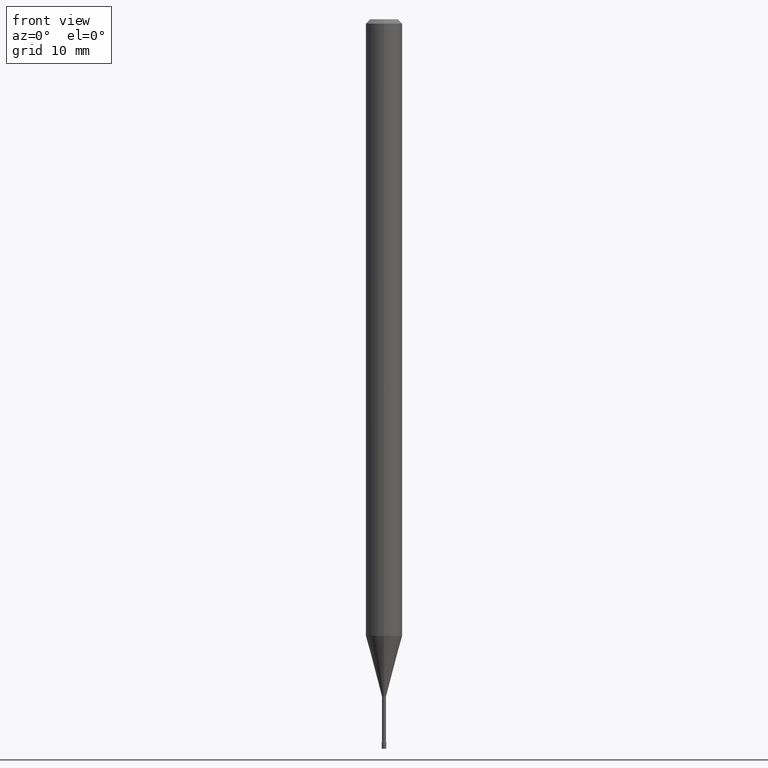
[diagram: clean part render]
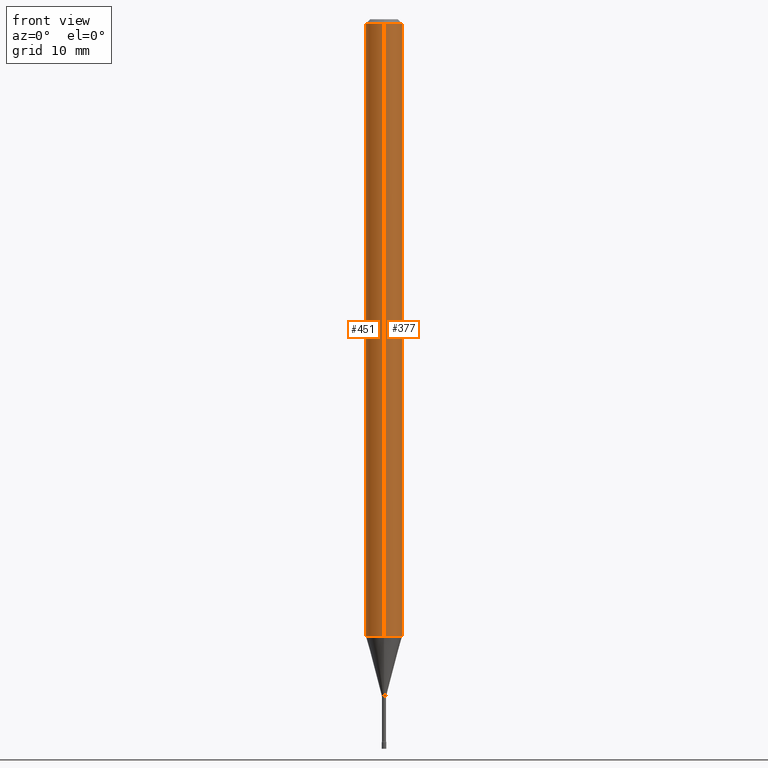
[diagram: same view with one multi-face feature highlighted, each face labeled with its STEP entity id]
A machine part, front view. The highlighted faces form ONE feature: a constant-radius fillet chain: 2 tangent blend faces with common blend radius 1.5875 mm. The faces share edges in the B-rep.
Their STEP definitions:
[1] entity #377 (Cylinder):
#8 = DIRECTION ( 'NONE',  ( -2.445435438683695197E-29, 3.491529123004369972E-15, 1.000000000000000000 ) ) ;
#12 = AXIS2_PLACEMENT_3D ( 'NONE', #134, #256, #304 ) ;
#20 = EDGE_CURVE ( 'NONE', #433, #145, #72, .T. ) ;
#43 = LINE ( 'NONE', #363, #238 ) ;
#60 = DIRECTION ( 'NONE',  ( -2.445435438683695197E-29, 3.491529123004369972E-15, 1.000000000000000000 ) ) ;
#72 = CIRCLE ( 'NONE', #439, 0.06250000000000000000 ) ;
#82 = ORIENTED_EDGE ( 'NONE', *, *, #266, .F. ) ;
#134 = CARTESIAN_POINT ( 'NONE',  ( 5.167346385850627503E-29, -7.377802786958990502E-15, -2.113057782720306310 ) ) ;
#145 = VERTEX_POINT ( 'NONE', #444 ) ;
#214 = ORIENTED_EDGE ( 'NONE', *, *, #446, .T. ) ;
#238 = VECTOR ( 'NONE', #366, 39.37007874015748143 ) ;
#254 = CARTESIAN_POINT ( 'NONE',  ( -4.364351673553912750E-16, -0.06250000000000005551, -0.01499999999999981209 ) ) ;
#256 = DIRECTION ( 'NONE',  ( -2.445435438683695197E-29, 3.491529123004369972E-15, 1.000000000000000000 ) ) ;
#266 = EDGE_CURVE ( 'NONE', #319, #433, #43, .T. ) ;
#273 = ORIENTED_EDGE ( 'NONE', *, *, #20, .F. ) ;
#289 = FACE_OUTER_BOUND ( 'NONE', #309, .T. ) ;
#304 = DIRECTION ( 'NONE',  ( -6.982962677686265922E-15, -1.000000000000000000, 4.370956789862821150E-15 ) ) ;
#309 = EDGE_LOOP ( 'NONE', ( #401, #214, #273, #82 ) ) ;
#319 = VERTEX_POINT ( 'NONE', #342 ) ;
#329 = CARTESIAN_POINT ( 'NONE',  ( 3.668153158025549838E-31, -5.237293684506565830E-17, -0.01500000000000003067 ) ) ;
#334 = CARTESIAN_POINT ( 'NONE',  ( 0.000000000000000000, 0.000000000000000000, 0.000000000000000000 ) ) ;
#340 = VECTOR ( 'NONE', #60, 39.37007874015748143 ) ;
#342 = CARTESIAN_POINT ( 'NONE',  ( -4.364351673553400483E-16, -0.06250000000000739686, -2.113057782720305866 ) ) ;
#363 = CARTESIAN_POINT ( 'NONE',  ( -4.364351673553916201E-16, -0.06250000000000000000, 2.182205701877731233E-16 ) ) ;
#366 = DIRECTION ( 'NONE',  ( -2.445435438683695197E-29, 3.491529123004369972E-15, 1.000000000000000000 ) ) ;
#377 = ADVANCED_FACE ( 'NONE', ( #289 ), #454, .T. ) ;
#379 = CARTESIAN_POINT ( 'NONE',  ( 4.440892098501141880E-16, 0.06249999999999262396, -2.113057782720306310 ) ) ;
#391 = DIRECTION ( 'NONE',  ( -6.982962677686265922E-15, -1.000000000000000000, 3.483106191921935554E-15 ) ) ;
#400 = VERTEX_POINT ( 'NONE', #379 ) ;
#401 = ORIENTED_EDGE ( 'NONE', *, *, #517, .T. ) ;
#418 = DIRECTION ( 'NONE',  ( -6.982962677686265922E-15, -1.000000000000000000, 3.491529123004369972E-15 ) ) ;
#429 = CARTESIAN_POINT ( 'NONE',  ( 4.440892098500625669E-16, 0.06250000000000000000, -2.182205701877731233E-16 ) ) ;
#431 = DIRECTION ( 'NONE',  ( -2.445435438683695197E-29, 3.491529123004369972E-15, 1.000000000000000000 ) ) ;
#433 = VERTEX_POINT ( 'NONE', #254 ) ;
#439 = AXIS2_PLACEMENT_3D ( 'NONE', #329, #431, #391 ) ;
#444 = CARTESIAN_POINT ( 'NONE',  ( 4.440892098501145824E-16, 0.06249999999999995143, -0.01500000000000024751 ) ) ;
#446 = EDGE_CURVE ( 'NONE', #400, #145, #466, .T. ) ;
#454 = CYLINDRICAL_SURFACE ( 'NONE', #501, 0.06250000000000000000 ) ;
#466 = LINE ( 'NONE', #429, #340 ) ;
#501 = AXIS2_PLACEMENT_3D ( 'NONE', #334, #8, #418 ) ;
#513 = CIRCLE ( 'NONE', #12, 0.06250000000000000000 ) ;
#517 = EDGE_CURVE ( 'NONE', #319, #400, #513, .T. ) ;
[2] entity #451 (Cylinder):
#36 = ORIENTED_EDGE ( 'NONE', *, *, #266, .T. ) ;
#43 = LINE ( 'NONE', #363, #238 ) ;
#54 = CARTESIAN_POINT ( 'NONE',  ( 0.000000000000000000, 0.000000000000000000, 0.000000000000000000 ) ) ;
#56 = CIRCLE ( 'NONE', #399, 0.06250000000000000000 ) ;
#60 = DIRECTION ( 'NONE',  ( -2.445435438683695197E-29, 3.491529123004369972E-15, 1.000000000000000000 ) ) ;
#139 = DIRECTION ( 'NONE',  ( -6.982962677686265922E-15, -1.000000000000000000, 3.483106191921935554E-15 ) ) ;
#144 = ORIENTED_EDGE ( 'NONE', *, *, #446, .F. ) ;
#145 = VERTEX_POINT ( 'NONE', #444 ) ;
#168 = CIRCLE ( 'NONE', #332, 0.06250000000000000000 ) ;
#173 = DIRECTION ( 'NONE',  ( -2.445435438683695197E-29, 3.491529123004369972E-15, 1.000000000000000000 ) ) ;
#182 = FACE_OUTER_BOUND ( 'NONE', #283, .T. ) ;
#198 = ORIENTED_EDGE ( 'NONE', *, *, #516, .F. ) ;
#213 = DIRECTION ( 'NONE',  ( -2.445435438683695197E-29, 3.491529123004369972E-15, 1.000000000000000000 ) ) ;
#221 = DIRECTION ( 'NONE',  ( -6.982962677686265922E-15, -1.000000000000000000, 4.370956789862821150E-15 ) ) ;
#238 = VECTOR ( 'NONE', #366, 39.37007874015748143 ) ;
#254 = CARTESIAN_POINT ( 'NONE',  ( -4.364351673553912750E-16, -0.06250000000000005551, -0.01499999999999981209 ) ) ;
#266 = EDGE_CURVE ( 'NONE', #319, #433, #43, .T. ) ;
#283 = EDGE_LOOP ( 'NONE', ( #144, #353, #36, #198 ) ) ;
#319 = VERTEX_POINT ( 'NONE', #342 ) ;
#332 = AXIS2_PLACEMENT_3D ( 'NONE', #387, #213, #221 ) ;
#336 = EDGE_CURVE ( 'NONE', #400, #319, #168, .T. ) ;
#337 = DIRECTION ( 'NONE',  ( -6.982962677686265922E-15, -1.000000000000000000, 3.491529123004369972E-15 ) ) ;
#340 = VECTOR ( 'NONE', #60, 39.37007874015748143 ) ;
#342 = CARTESIAN_POINT ( 'NONE',  ( -4.364351673553400483E-16, -0.06250000000000739686, -2.113057782720305866 ) ) ;
#353 = ORIENTED_EDGE ( 'NONE', *, *, #336, .T. ) ;
#363 = CARTESIAN_POINT ( 'NONE',  ( -4.364351673553916201E-16, -0.06250000000000000000, 2.182205701877731233E-16 ) ) ;
#366 = DIRECTION ( 'NONE',  ( -2.445435438683695197E-29, 3.491529123004369972E-15, 1.000000000000000000 ) ) ;
#379 = CARTESIAN_POINT ( 'NONE',  ( 4.440892098501141880E-16, 0.06249999999999262396, -2.113057782720306310 ) ) ;
#387 = CARTESIAN_POINT ( 'NONE',  ( 5.167346385850627503E-29, -7.377802786958990502E-15, -2.113057782720306310 ) ) ;
#390 = DIRECTION ( 'NONE',  ( -2.445435438683695197E-29, 3.491529123004369972E-15, 1.000000000000000000 ) ) ;
#399 = AXIS2_PLACEMENT_3D ( 'NONE', #497, #390, #139 ) ;
#400 = VERTEX_POINT ( 'NONE', #379 ) ;
#407 = AXIS2_PLACEMENT_3D ( 'NONE', #54, #173, #337 ) ;
#429 = CARTESIAN_POINT ( 'NONE',  ( 4.440892098500625669E-16, 0.06250000000000000000, -2.182205701877731233E-16 ) ) ;
#433 = VERTEX_POINT ( 'NONE', #254 ) ;
#444 = CARTESIAN_POINT ( 'NONE',  ( 4.440892098501145824E-16, 0.06249999999999995143, -0.01500000000000024751 ) ) ;
#446 = EDGE_CURVE ( 'NONE', #400, #145, #466, .T. ) ;
#451 = ADVANCED_FACE ( 'NONE', ( #182 ), #495, .T. ) ;
#466 = LINE ( 'NONE', #429, #340 ) ;
#495 = CYLINDRICAL_SURFACE ( 'NONE', #407, 0.06250000000000000000 ) ;
#497 = CARTESIAN_POINT ( 'NONE',  ( 3.668153158025549838E-31, -5.237293684506565830E-17, -0.01500000000000003067 ) ) ;
#516 = EDGE_CURVE ( 'NONE', #145, #433, #56, .T. ) ;